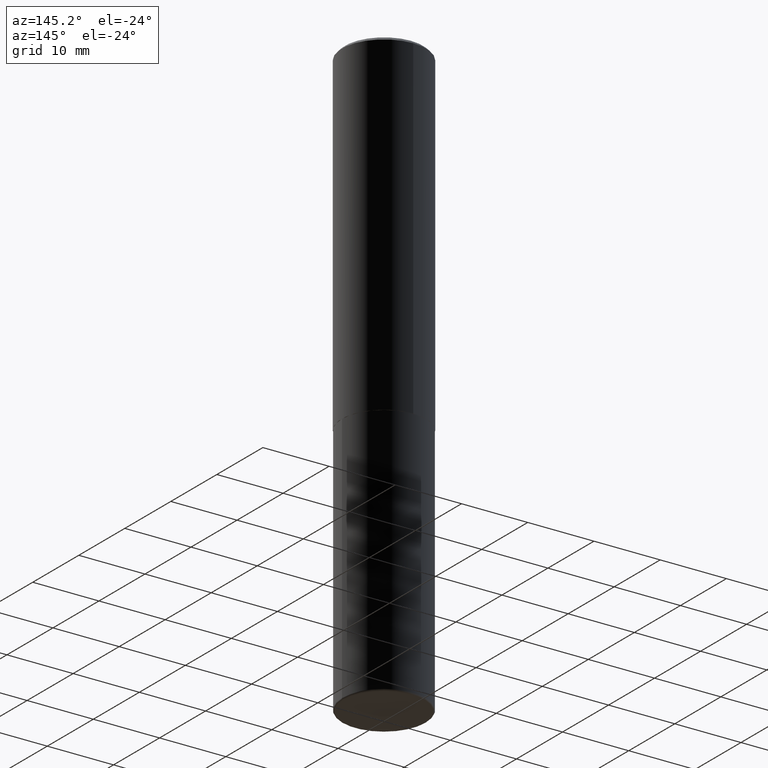
[diagram: clean part render]
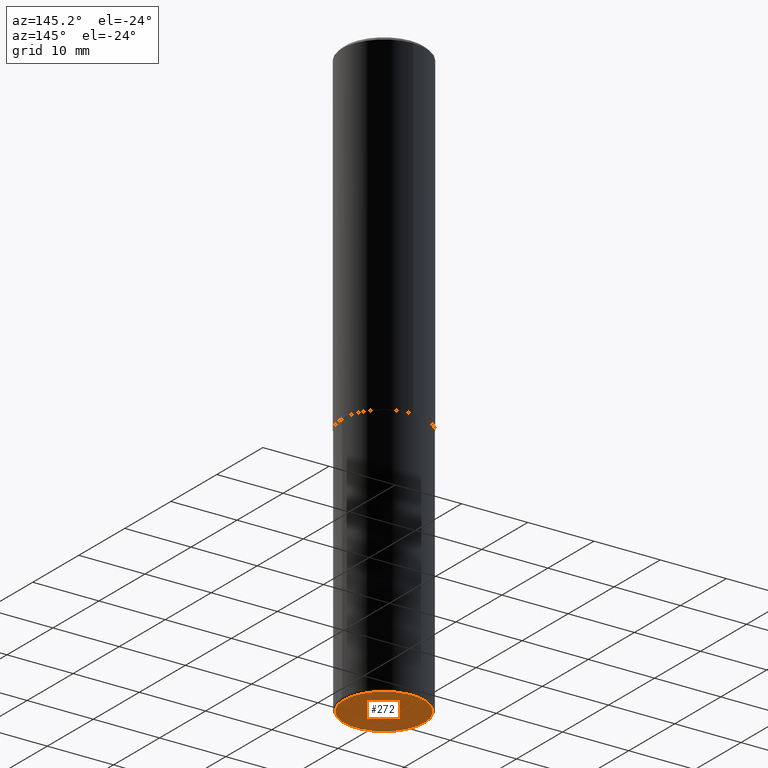
[diagram: same view with one face highlighted and labeled with its STEP entity id]
A machine part, auxiliary view. The second image highlights one B-rep face of the part: STEP entity #272.
In plain terms, the highlighted planar face has unit normal (0, -0, -1).
Its self-contained STEP definition (entity closure, byte-faithful):
#8 = DIRECTION ( 'NONE',  ( -1.000000000000000000, 6.982962677686265922E-15, -4.876176775795935793E-29 ) ) ;
#35 = ORIENTED_EDGE ( 'NONE', *, *, #195, .F. ) ;
#37 = DIRECTION ( 'NONE',  ( 1.000000000000000000, -6.982962677686268288E-15, 0.000000000000000000 ) ) ;
#61 = CIRCLE ( 'NONE', #236, 0.2399999999999999911 ) ;
#70 = FACE_OUTER_BOUND ( 'NONE', #233, .T. ) ;
#96 = DIRECTION ( 'NONE',  ( -2.445468806185136597E-29, 3.491481338843145583E-15, 1.000000000000000000 ) ) ;
#99 = ORIENTED_EDGE ( 'NONE', *, *, #276, .F. ) ;
#105 = CARTESIAN_POINT ( 'NONE',  ( 8.559140821647976968E-29, -1.222018468595100934E-14, -3.500000000000000000 ) ) ;
#127 = CARTESIAN_POINT ( 'NONE',  ( 8.559140821647976968E-29, -1.222018468595100934E-14, -3.500000000000000000 ) ) ;
#169 = PLANE ( 'NONE',  #336 ) ;
#191 = VERTEX_POINT ( 'NONE', #250 ) ;
#194 = DIRECTION ( 'NONE',  ( -2.445468806185136597E-29, 3.491481338843145583E-15, 1.000000000000000000 ) ) ;
#195 = EDGE_CURVE ( 'NONE', #266, #191, #61, .T. ) ;
#233 = EDGE_LOOP ( 'NONE', ( #35, #99 ) ) ;
#236 = AXIS2_PLACEMENT_3D ( 'NONE', #380, #96, #37 ) ;
#250 = CARTESIAN_POINT ( 'NONE',  ( -0.2399999999999999911, -1.046189757664454652E-14, -3.500000000000000000 ) ) ;
#266 = VERTEX_POINT ( 'NONE', #356 ) ;
#272 = ADVANCED_FACE ( 'NONE', ( #70 ), #169, .T. ) ;
#276 = EDGE_CURVE ( 'NONE', #191, #266, #398, .T. ) ;
#292 = DIRECTION ( 'NONE',  ( 2.438088387897960049E-29, -3.491481338843145188E-15, -1.000000000000000000 ) ) ;
#314 = DIRECTION ( 'NONE',  ( 1.000000000000000000, -6.982962677686268288E-15, 0.000000000000000000 ) ) ;
#336 = AXIS2_PLACEMENT_3D ( 'NONE', #127, #292, #8 ) ;
#356 = CARTESIAN_POINT ( 'NONE',  ( 0.2399999999999999911, -1.389609572859571272E-14, -3.500000000000000000 ) ) ;
#373 = AXIS2_PLACEMENT_3D ( 'NONE', #105, #194, #314 ) ;
#380 = CARTESIAN_POINT ( 'NONE',  ( 8.559140821647976968E-29, -1.222018468595100934E-14, -3.500000000000000000 ) ) ;
#398 = CIRCLE ( 'NONE', #373, 0.2399999999999999911 ) ;